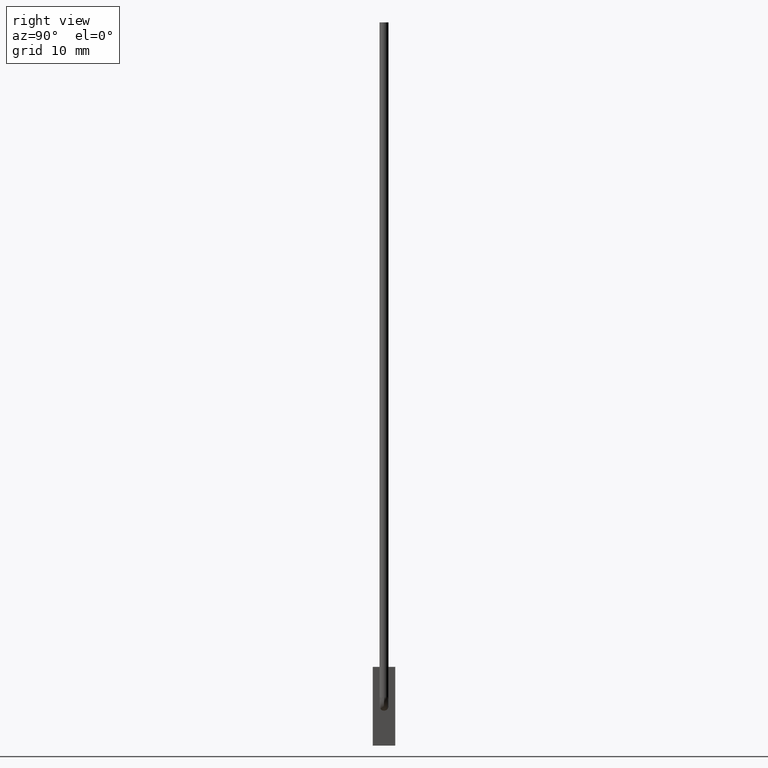
[diagram: clean part render]
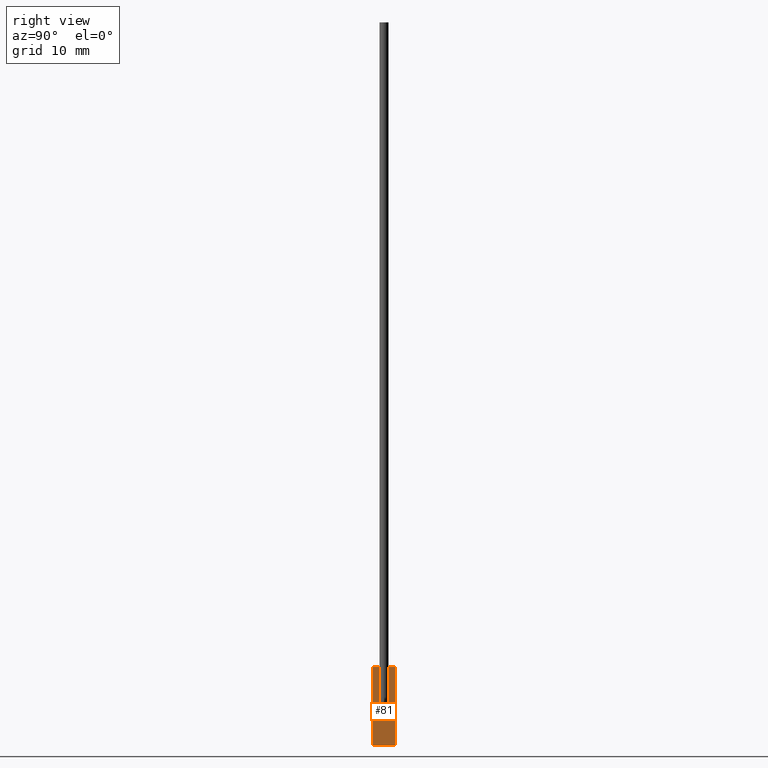
[diagram: same view with one face highlighted and labeled with its STEP entity id]
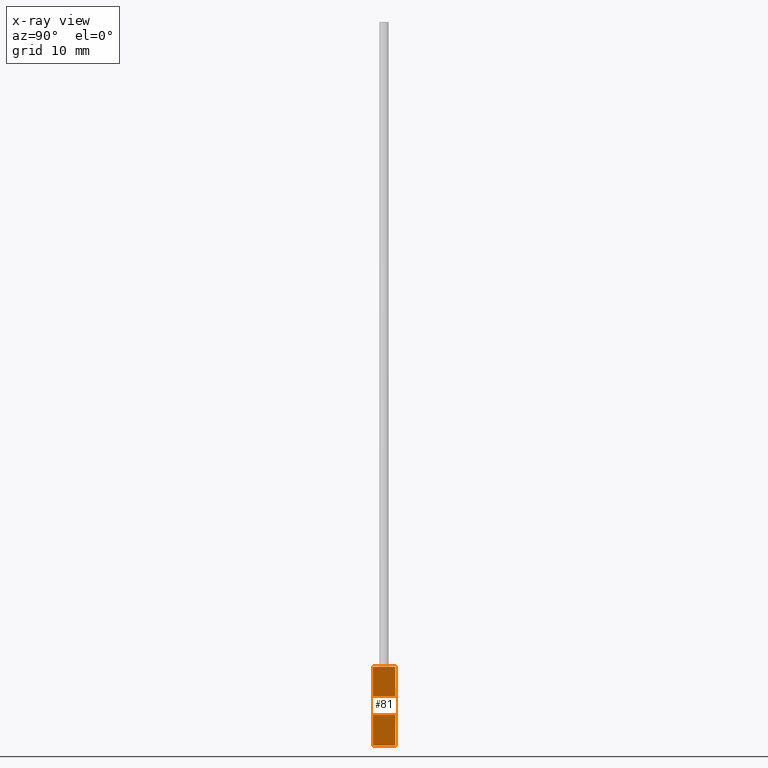
[diagram: x-ray of the same camera — body ghosted, the highlighted face saturated]
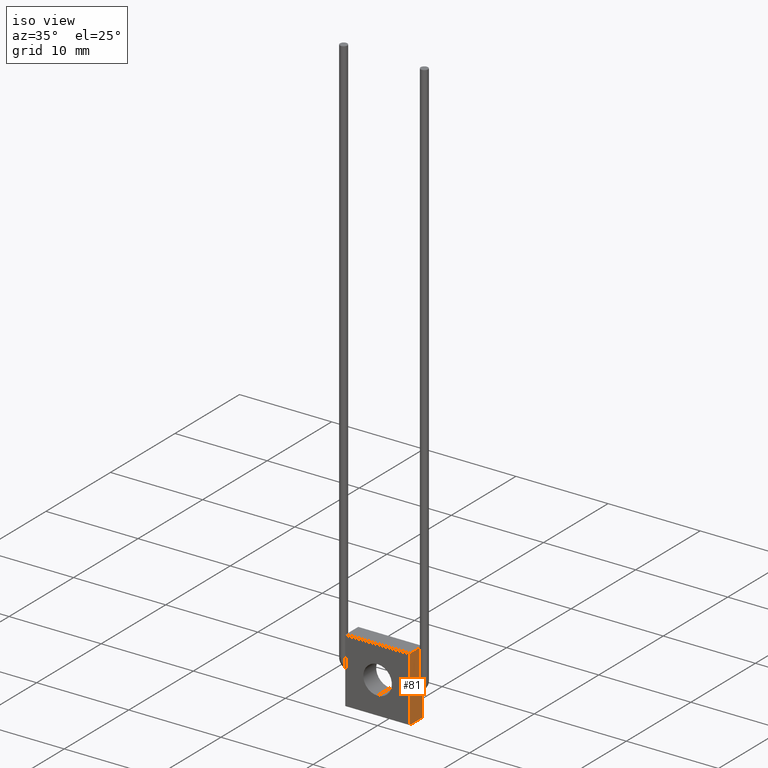
[diagram: same view with one face highlighted and labeled with its STEP entity id]
A machine part, right view. The second image highlights one B-rep face of the part: STEP entity #81.
The next image is the same camera in x-ray: the body ghosted, the highlighted face saturated — about 0% of this face is hidden behind the body in this view.
A second angle (iso view) of the same face is appended — the face is thin or edge-on in the first view.
In plain terms, the highlighted planar face has unit normal (-1, 0, 0).
Its self-contained STEP definition (entity closure, byte-faithful):
#11 = LINE ( 'NONE', #868, #827 ) ;
#17 = DIRECTION ( 'NONE',  ( -6.195440985631454100E-017, -0.0000000000000000000, -1.000000000000000000 ) ) ;
#81 = ADVANCED_FACE ( 'NONE', ( #458 ), #1078, .F. ) ;
#109 = VERTEX_POINT ( 'NONE', #1162 ) ;
#112 = VERTEX_POINT ( 'NONE', #907 ) ;
#159 = CARTESIAN_POINT ( 'NONE',  ( 3.499999999999999600, 2.000000000000000000, -3.500000000000000000 ) ) ;
#220 = EDGE_CURVE ( 'NONE', #112, #686, #383, .T. ) ;
#247 = EDGE_CURVE ( 'NONE', #686, #1055, #11, .T. ) ;
#258 = ORIENTED_EDGE ( 'NONE', *, *, #220, .F. ) ;
#332 = CARTESIAN_POINT ( 'NONE',  ( 3.499999999999999600, 2.000000000000000000, -3.500000000000000000 ) ) ;
#364 = EDGE_CURVE ( 'NONE', #112, #109, #669, .T. ) ;
#383 = LINE ( 'NONE', #332, #1141 ) ;
#414 = DIRECTION ( 'NONE',  ( -0.0000000000000000000, -1.000000000000000000, -0.0000000000000000000 ) ) ;
#417 = ORIENTED_EDGE ( 'NONE', *, *, #247, .F. ) ;
#447 = CARTESIAN_POINT ( 'NONE',  ( 3.499999999999999600, 2.000000000000000000, -3.500000000000000000 ) ) ;
#451 = CARTESIAN_POINT ( 'NONE',  ( 3.500000000000000000, 2.000000000000000000, 3.500000000000000000 ) ) ;
#458 = FACE_OUTER_BOUND ( 'NONE', #993, .T. ) ;
#475 = ORIENTED_EDGE ( 'NONE', *, *, #1178, .T. ) ;
#536 = DIRECTION ( 'NONE',  ( -1.000000000000000000, 0.0000000000000000000, 6.195440985631455300E-017 ) ) ;
#615 = LINE ( 'NONE', #688, #922 ) ;
#669 = LINE ( 'NONE', #451, #884 ) ;
#681 = DIRECTION ( 'NONE',  ( -6.195440985631454100E-017, -0.0000000000000000000, -1.000000000000000000 ) ) ;
#686 = VERTEX_POINT ( 'NONE', #159 ) ;
#688 = CARTESIAN_POINT ( 'NONE',  ( 3.499999999999999600, 0.0000000000000000000, -3.500000000000000000 ) ) ;
#774 = AXIS2_PLACEMENT_3D ( 'NONE', #447, #536, #1172 ) ;
#787 = CARTESIAN_POINT ( 'NONE',  ( 3.499999999999999600, 0.0000000000000000000, -3.500000000000000000 ) ) ;
#827 = VECTOR ( 'NONE', #886, 1000.000000000000000 ) ;
#868 = CARTESIAN_POINT ( 'NONE',  ( 3.499999999999999600, 2.000000000000000000, -3.500000000000000000 ) ) ;
#884 = VECTOR ( 'NONE', #414, 1000.000000000000000 ) ;
#886 = DIRECTION ( 'NONE',  ( -0.0000000000000000000, -1.000000000000000000, -0.0000000000000000000 ) ) ;
#907 = CARTESIAN_POINT ( 'NONE',  ( 3.500000000000000000, 2.000000000000000000, 3.500000000000000000 ) ) ;
#922 = VECTOR ( 'NONE', #681, 1000.000000000000000 ) ;
#993 = EDGE_LOOP ( 'NONE', ( #475, #417, #258, #1208 ) ) ;
#1055 = VERTEX_POINT ( 'NONE', #787 ) ;
#1078 = PLANE ( 'NONE',  #774 ) ;
#1141 = VECTOR ( 'NONE', #17, 1000.000000000000000 ) ;
#1162 = CARTESIAN_POINT ( 'NONE',  ( 3.500000000000000000, 0.0000000000000000000, 3.500000000000000000 ) ) ;
#1172 = DIRECTION ( 'NONE',  ( 6.195440985631455300E-017, 0.0000000000000000000, 1.000000000000000000 ) ) ;
#1178 = EDGE_CURVE ( 'NONE', #109, #1055, #615, .T. ) ;
#1208 = ORIENTED_EDGE ( 'NONE', *, *, #364, .T. ) ;